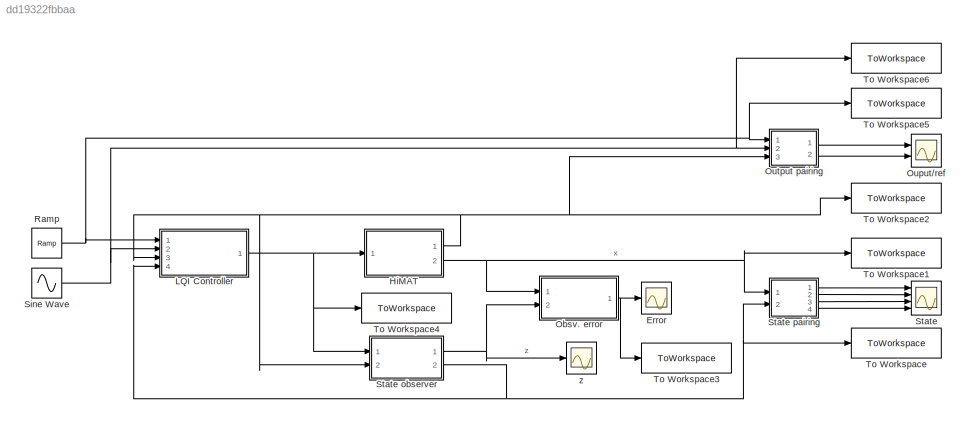
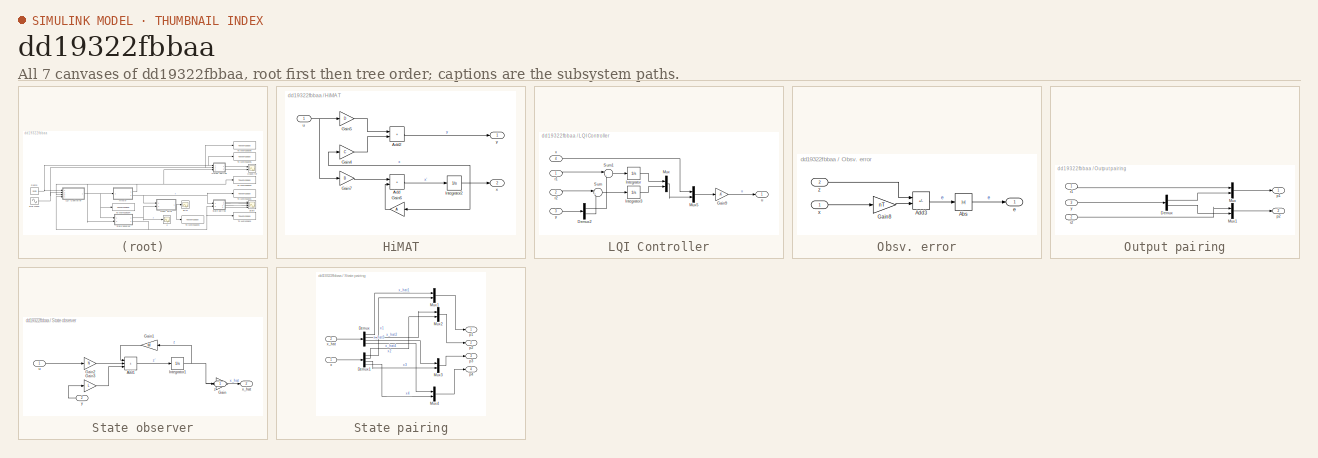
[diagram: thumbnail index - all 7 canvases of the model, root first then tree order]
MODEL slx_dd19322fbbaa
KIND model
CONFIG AbsTol = auto
CONFIG EnableMultiTasking = off
CONFIG FixedStep = 0.01
CONFIG MaxStep = auto
CONFIG MinStep = auto
CONFIG RelTol = 1e-3
CONFIG SampleTimeConstraint = Unconstrained
CONFIG Solver = ode4
CONFIG SolverName = ode4
CONFIG StartTime = 0.0
CONFIG StopTime = t
BLOCK [Scope] Error
  Floating = off
  NumInputPorts = 1
  Ports = [1]
  ScopeSpecificationString = Simulink.scopes.TimeScopeBlockCfg('CurrentConfiguration', extmgr.ConfigurationSet(extmgr.Configuration('Core','General UI',true),extmgr.Configuration('Core','Source UI',true),extmgr.Configuration('Sources','WiredSimulink',true,'DataLoggingVariableName','ScopeData1'),extmgr.Configuration('Visuals','Time Domain',true,'SerializedDisplays',{struct('MinYLimReal','-0.0015','MaxYLimReal','0.01354','YLabe...<+1463ch>
BLOCK [SubSystem] HiMAT
  Ports = [1, 2]
  RequestExecContextInheritance = off
BLOCK [Sum] HiMAT/Add
  IconShape = rectangular
  Ports = [2, 1]
BLOCK [Sum] HiMAT/Add2
  IconShape = rectangular
  Ports = [2, 1]
BLOCK [Gain] HiMAT/Gain4
  Gain = C
  Multiplication = Matrix(K*u)
BLOCK [Gain] HiMAT/Gain5
  Gain = D
  Multiplication = Matrix(K*u)
BLOCK [Gain] HiMAT/Gain6
  Gain = A
  Multiplication = Matrix(K*u)
BLOCK [Gain] HiMAT/Gain7
  Gain = B
  Multiplication = Matrix(K*u)
BLOCK [Integrator] HiMAT/Integrator2
  InitialCondition = x0
  Ports = [1, 1]
BLOCK [Inport] HiMAT/u
BLOCK [Outport] HiMAT/x
  Port = 2
BLOCK [Outport] HiMAT/y
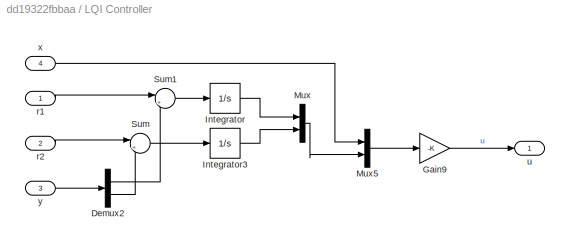
BLOCK [SubSystem] LQI Controller
  Ports = [4, 1]
  RequestExecContextInheritance = off
BLOCK [Demux] LQI Controller/Demux2
  Outputs = 2
  Ports = [1, 2]
BLOCK [Gain] LQI Controller/Gain9
  Gain = -K
  Multiplication = Matrix(K*u)
BLOCK [Integrator] LQI Controller/Integrator
  Ports = [1, 1]
BLOCK [Integrator] LQI Controller/Integrator3
  Ports = [1, 1]
BLOCK [Mux] LQI Controller/Mux
  DisplayOption = bar
  Inputs = 2
  Ports = [2, 1]
BLOCK [Mux] LQI Controller/Mux5
  DisplayOption = bar
  Inputs = 2
  Ports = [2, 1]
BLOCK [Sum] LQI Controller/Sum
  Inputs = |+-
  Ports = [2, 1]
BLOCK [Sum] LQI Controller/Sum1
  Inputs = |+-
  Ports = [2, 1]
BLOCK [Inport] LQI Controller/r1
BLOCK [Inport] LQI Controller/r2
  Port = 2
BLOCK [Outport] LQI Controller/u
BLOCK [Inport] LQI Controller/x
  Port = 4
BLOCK [Inport] LQI Controller/y
  Port = 3
BLOCK [SubSystem] Obsv. error
  Ports = [2, 1]
  RequestExecContextInheritance = off
BLOCK [Abs] Obsv. error/Abs
  SaturateOnIntegerOverflow = off
BLOCK [Sum] Obsv. error/Add3
  IconShape = rectangular
  Inputs = +-
  Ports = [2, 1]
BLOCK [Gain] Obsv. error/Gain8
  Gain = nT
  Multiplication = Matrix(K*u)
BLOCK [Outport] Obsv. error/e
BLOCK [Inport] Obsv. error/x
BLOCK [Inport] Obsv. error/z
  Port = 2
BLOCK [Scope] Ouput//ref
  Floating = off
  NumInputPorts = 2
  Ports = [2]
  ScopeSpecificationString = Simulink.scopes.TimeScopeBlockCfg('CurrentConfiguration', extmgr.ConfigurationSet(extmgr.Configuration('Core','General UI',true),extmgr.Configuration('Core','Source UI',true),extmgr.Configuration('Sources','WiredSimulink',true,'DataLoggingVariableName','ScopeData2'),extmgr.Configuration('Visuals','Time Domain',true,'SerializedDisplays',{struct('MinYLimReal','-300.69239','MaxYLimReal','866.7436','Y...<+2157ch>
BLOCK [SubSystem] Output pairing
  Ports = [3, 2]
  RequestExecContextInheritance = off
BLOCK [Demux] Output pairing/Demux
  Outputs = 2
  Ports = [1, 2]
BLOCK [Mux] Output pairing/Mux
  DisplayOption = bar
  Inputs = 2
  Ports = [2, 1]
BLOCK [Mux] Output pairing/Mux1
  DisplayOption = bar
  Inputs = 2
  Ports = [2, 1]
BLOCK [Outport] Output pairing/p1
BLOCK [Outport] Output pairing/p2
  Port = 2
BLOCK [Inport] Output pairing/r1
BLOCK [Inport] Output pairing/r2
  Port = 2
BLOCK [Inport] Output pairing/y
  Port = 3
BLOCK [Reference] Ramp  REF=simulink/Sources/Ramp
  Ports = [0, 1]
  SourceBlock = simulink/Sources/Ramp
  SourceProductBaseCode = SL
  SourceType = Ramp
BLOCK [Sin] Sine Wave
  Amplitude = 40
  Frequency = 1.5
  Ports = [0, 1]
  SampleTime = 0
BLOCK [Scope] State
  Floating = off
  NumInputPorts = 4
  Ports = [4]
  ScopeSpecificationString = Simulink.scopes.TimeScopeBlockCfg('CurrentConfiguration', extmgr.ConfigurationSet(extmgr.Configuration('Core','General UI',true),extmgr.Configuration('Core','Source UI',true),extmgr.Configuration('Sources','WiredSimulink',true,'DataLoggingVariableName','ScopeData3'),extmgr.Configuration('Visuals','Time Domain',true,'SerializedDisplays',{struct('MinYLimReal','-3801.93446','MaxYLimReal','10767.2244'...<+3680ch>
BLOCK [SubSystem] State observer
  Ports = [2, 2]
  RequestExecContextInheritance = off
BLOCK [Sum] State observer/Add1
  IconShape = rectangular
  Inputs = +++
  Ports = [3, 1]
BLOCK [Gain] State observer/Gain
  Gain = inv(nT)
  Multiplication = Matrix(K*u)
BLOCK [Gain] State observer/Gain1
  Gain = M
  Multiplication = Matrix(K*u)
BLOCK [Gain] State observer/Gain2
  Gain = N
  Multiplication = Matrix(K*u)
BLOCK [Gain] State observer/Gain3
  Gain = L
  Multiplication = Matrix(K*u)
BLOCK [Integrator] State observer/Integrator1
  InitialCondition = z0
  Ports = [1, 1]
BLOCK [Inport] State observer/u
BLOCK [Outport] State observer/x_hat
  Port = 2
BLOCK [Inport] State observer/y
  Port = 2
BLOCK [Outport] State observer/z
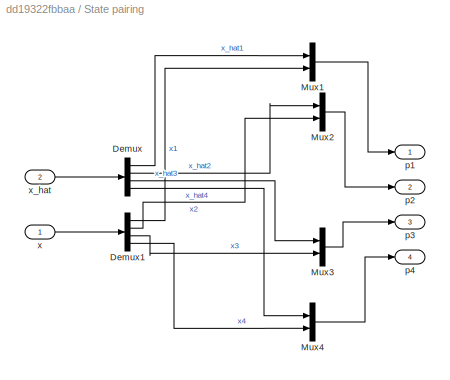
BLOCK [SubSystem] State pairing
  Ports = [2, 4]
  RequestExecContextInheritance = off
BLOCK [Demux] State pairing/Demux
  Ports = [1, 4]
BLOCK [Demux] State pairing/Demux1
  Ports = [1, 4]
BLOCK [Mux] State pairing/Mux1
  DisplayOption = bar
  Inputs = 2
  Ports = [2, 1]
BLOCK [Mux] State pairing/Mux2
  DisplayOption = bar
  Inputs = 2
  Ports = [2, 1]
BLOCK [Mux] State pairing/Mux3
  DisplayOption = bar
  Inputs = 2
  Ports = [2, 1]
BLOCK [Mux] State pairing/Mux4
  DisplayOption = bar
  Inputs = 2
  Ports = [2, 1]
BLOCK [Outport] State pairing/p1
BLOCK [Outport] State pairing/p2
  Port = 2
BLOCK [Outport] State pairing/p3
  Port = 3
BLOCK [Outport] State pairing/p4
  Port = 4
BLOCK [Inport] State pairing/x
BLOCK [Inport] State pairing/x_hat
  Port = 2
BLOCK [ToWorkspace] To Workspace
  FixptAsFi = on
  MaxDataPoints = inf
  Ports = [1]
  SampleTime = -1
  SaveFormat = Structure
  VariableName = estate
BLOCK [ToWorkspace] To Workspace1
  FixptAsFi = on
  MaxDataPoints = inf
  Ports = [1]
  SampleTime = -1
  SaveFormat = Structure
  VariableName = state
BLOCK [ToWorkspace] To Workspace2
  FixptAsFi = on
  MaxDataPoints = inf
  Ports = [1]
  SampleTime = -1
  SaveFormat = Structure
  VariableName = output
BLOCK [ToWorkspace] To Workspace3
  FixptAsFi = on
  MaxDataPoints = inf
  Ports = [1]
  SampleTime = -1
  SaveFormat = Structure
  VariableName = error
BLOCK [ToWorkspace] To Workspace4
  FixptAsFi = on
  MaxDataPoints = inf
  Ports = [1]
  SampleTime = -1
  SaveFormat = Structure
  VariableName = control
BLOCK [ToWorkspace] To Workspace5
  FixptAsFi = on
  MaxDataPoints = inf
  Ports = [1]
  SampleTime = -1
  SaveFormat = Structure
  VariableName = ref1
BLOCK [ToWorkspace] To Workspace6
  FixptAsFi = on
  MaxDataPoints = inf
  Ports = [1]
  SampleTime = -1
  SaveFormat = Structure
  VariableName = ref2
BLOCK [Scope] z
  Floating = off
  NumInputPorts = 1
  Ports = [1]
  ScopeSpecificationString = Simulink.scopes.TimeScopeBlockCfg('CurrentConfiguration', extmgr.ConfigurationSet(extmgr.Configuration('Core','General UI',true),extmgr.Configuration('Core','Source UI',true),extmgr.Configuration('Sources','WiredSimulink',true),extmgr.Configuration('Visuals','Time Domain',true,'SerializedDisplays',{struct('MinYLimReal','-4.75095','MaxYLimReal','3.05563','YLabelReal','','MinYLimMag','0.00000','MaxY...<+1386ch>
LINE HiMAT/Add2:1 -> HiMAT/y:1
LINE HiMAT/Add:1 -> HiMAT/Integrator2:1
LINE HiMAT/Gain4:1 -> HiMAT/Add2:2
LINE HiMAT/Gain5:1 -> HiMAT/Add2:1
LINE HiMAT/Gain6:1 -> HiMAT/Add:2
LINE HiMAT/Gain7:1 -> HiMAT/Add:1
NET HiMAT/Integrator2:1 -> HiMAT/Gain4:1, HiMAT/Gain6:1, HiMAT/x:1
NET HiMAT/u:1 -> HiMAT/Gain5:1, HiMAT/Gain7:1
NET HiMAT:1 -> LQI Controller:3, Output pairing:3, State observer:2, To Workspace2:1
NET HiMAT:2 -> Obsv. error:1, State pairing:1, To Workspace1:1
LINE LQI Controller/Demux2:1 -> LQI Controller/Sum1:2
LINE LQI Controller/Demux2:2 -> LQI Controller/Sum:2
LINE LQI Controller/Gain9:1 -> LQI Controller/u:1
LINE LQI Controller/Integrator3:1 -> LQI Controller/Mux:2
LINE LQI Controller/Integrator:1 -> LQI Controller/Mux:1
LINE LQI Controller/Mux5:1 -> LQI Controller/Gain9:1
LINE LQI Controller/Mux:1 -> LQI Controller/Mux5:2
LINE LQI Controller/Sum1:1 -> LQI Controller/Integrator:1
LINE LQI Controller/Sum:1 -> LQI Controller/Integrator3:1
LINE LQI Controller/r1:1 -> LQI Controller/Sum1:1
LINE LQI Controller/r2:1 -> LQI Controller/Sum:1
LINE LQI Controller/x:1 -> LQI Controller/Mux5:1
LINE LQI Controller/y:1 -> LQI Controller/Demux2:1
NET LQI Controller:1 -> HiMAT:1, State observer:1, To Workspace4:1
LINE Obsv. error/Abs:1 -> Obsv. error/e:1
LINE Obsv. error/Add3:1 -> Obsv. error/Abs:1
LINE Obsv. error/Gain8:1 -> Obsv. error/Add3:2
LINE Obsv. error/x:1 -> Obsv. error/Gain8:1
LINE Obsv. error/z:1 -> Obsv. error/Add3:1
NET Obsv. error:1 -> Error:1, To Workspace3:1
LINE Output pairing/Demux:1 -> Output pairing/Mux:2
LINE Output pairing/Demux:2 -> Output pairing/Mux1:2
LINE Output pairing/Mux1:1 -> Output pairing/p2:1
LINE Output pairing/Mux:1 -> Output pairing/p1:1
LINE Output pairing/r1:1 -> Output pairing/Mux:1
LINE Output pairing/r2:1 -> Output pairing/Mux1:1
LINE Output pairing/y:1 -> Output pairing/Demux:1
LINE Output pairing:1 -> Ouput//ref:1
LINE Output pairing:2 -> Ouput//ref:2
NET Ramp:1 -> LQI Controller:1, Output pairing:1, To Workspace5:1
NET Sine Wave:1 -> LQI Controller:2, Output pairing:2, To Workspace6:1
LINE State observer/Add1:1 -> State observer/Integrator1:1
LINE State observer/Gain1:1 -> State observer/Add1:1
LINE State observer/Gain2:1 -> State observer/Add1:2
LINE State observer/Gain3:1 -> State observer/Add1:3
LINE State observer/Gain:1 -> State observer/x_hat:1
NET State observer/Integrator1:1 -> State observer/Gain1:1, State observer/Gain:1, State observer/z:1
LINE State observer/u:1 -> State observer/Gain2:1
LINE State observer/y:1 -> State observer/Gain3:1
NET State observer:1 -> Obsv. error:2, z:1
NET State observer:2 -> LQI Controller:4, State pairing:2, To Workspace:1
LINE State pairing/Demux1:1 -> State pairing/Mux1:2
LINE State pairing/Demux1:2 -> State pairing/Mux2:2
LINE State pairing/Demux1:3 -> State pairing/Mux3:2
LINE State pairing/Demux1:4 -> State pairing/Mux4:2
LINE State pairing/Demux:1 -> State pairing/Mux1:1
LINE State pairing/Demux:2 -> State pairing/Mux2:1
LINE State pairing/Demux:3 -> State pairing/Mux3:1
LINE State pairing/Demux:4 -> State pairing/Mux4:1
LINE State pairing/Mux1:1 -> State pairing/p1:1
LINE State pairing/Mux2:1 -> State pairing/p2:1
LINE State pairing/Mux3:1 -> State pairing/p3:1
LINE State pairing/Mux4:1 -> State pairing/p4:1
LINE State pairing/x:1 -> State pairing/Demux1:1
LINE State pairing/x_hat:1 -> State pairing/Demux:1
LINE State pairing:1 -> State:1
LINE State pairing:2 -> State:2
LINE State pairing:3 -> State:3
LINE State pairing:4 -> State:4
note: NET lines group one-source signal fan-out (src -> all destinations, sorted); 1:1 wires keep LINE
